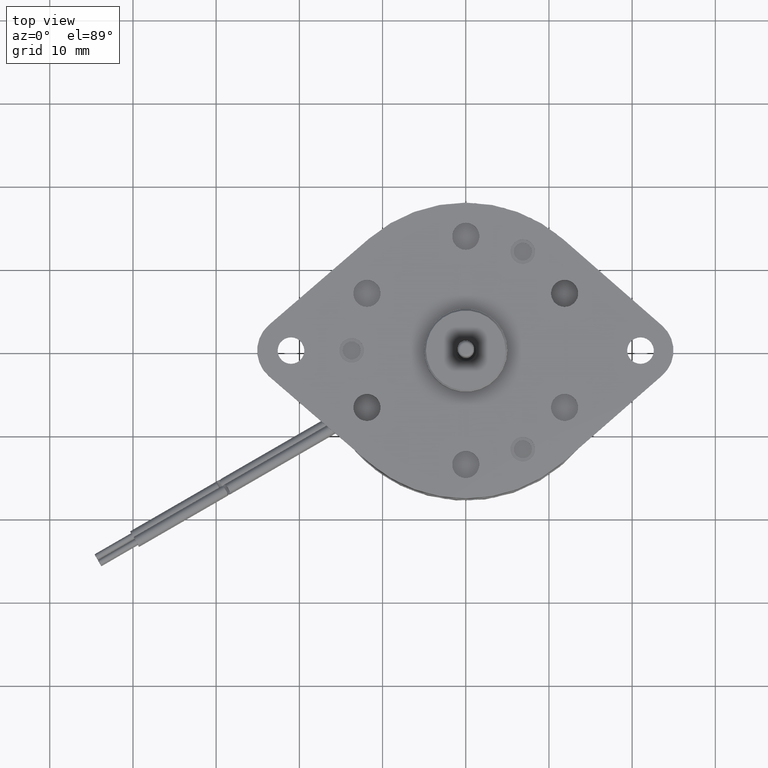
[diagram: clean part render]
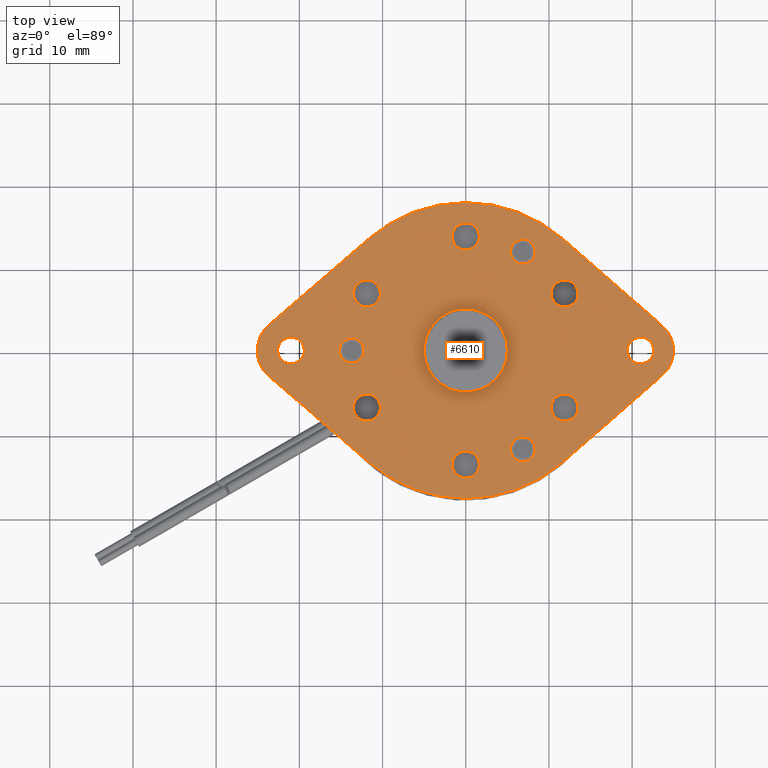
[diagram: same view with one face highlighted and labeled with its STEP entity id]
A machine part, top view. The second image highlights one B-rep face of the part: STEP entity #6610.
In plain terms, the highlighted planar face has unit normal (0, 0, 1).
Its self-contained STEP definition (entity closure, byte-faithful):
#2009=CARTESIAN_POINT('',(0.E0,0.E0,3.52E-1));
#2010=DIRECTION('',(0.E0,0.E0,-1.E0));
#2011=DIRECTION('',(-6.529625151144E-1,7.573902256139E-1,0.E0));
#2012=AXIS2_PLACEMENT_3D('',#2009,#2010,#2011);
#2014=CARTESIAN_POINT('',(0.E0,0.E0,3.52E-1));
#2015=DIRECTION('',(0.E0,0.E0,-1.E0));
#2016=DIRECTION('',(0.E0,1.E0,0.E0));
#2017=AXIS2_PLACEMENT_3D('',#2014,#2015,#2016);
#2019=DIRECTION('',(7.531932783061E-1,-6.577992744861E-1,0.E0));
#2020=VECTOR('',#2019,6.228908411603E-1);
#2021=CARTESIAN_POINT('',(4.604594921399E-1,5.272352948146E-1,3.52E-1));
#2022=LINE('',#2021,#2020);
#2023=CARTESIAN_POINT('',(8.27E-1,0.E0,3.52E-1));
#2024=DIRECTION('',(0.E0,0.E0,-1.E0));
#2025=DIRECTION('',(6.577992744926E-1,7.531932783005E-1,0.E0));
#2026=AXIS2_PLACEMENT_3D('',#2023,#2024,#2025);
#2028=DIRECTION('',(-7.531932783061E-1,-6.577992744861E-1,0.E0));
#2029=VECTOR('',#2028,6.228908411584E-1);
#2030=CARTESIAN_POINT('',(9.296166868197E-1,-1.174981514159E-1,3.52E-1));
#2031=LINE('',#2030,#2029);
#2032=CARTESIAN_POINT('',(0.E0,0.E0,3.52E-1));
#2033=DIRECTION('',(0.E0,0.E0,-1.E0));
#2034=DIRECTION('',(6.577992744874E-1,-7.531932783050E-1,0.E0));
#2035=AXIS2_PLACEMENT_3D('',#2032,#2033,#2034);
#2037=CARTESIAN_POINT('',(0.E0,0.E0,3.52E-1));
#2038=DIRECTION('',(0.E0,0.E0,-1.E0));
#2039=DIRECTION('',(0.E0,-1.E0,0.E0));
#2040=AXIS2_PLACEMENT_3D('',#2037,#2038,#2039);
#2042=DIRECTION('',(-7.573902256134E-1,6.529625151149E-1,0.E0));
#2043=VECTOR('',#2042,6.263617165840E-1);
#2044=CARTESIAN_POINT('',(-4.570737605799E-1,-5.301731579299E-1,3.52E-1));
#2045=LINE('',#2044,#2043);
#2046=CARTESIAN_POINT('',(-8.27E-1,0.E0,3.52E-1));
#2047=DIRECTION('',(0.E0,0.E0,-1.E0));
#2048=DIRECTION('',(-6.529625151228E-1,-7.573902256066E-1,0.E0));
#2049=AXIS2_PLACEMENT_3D('',#2046,#2047,#2048);
#2051=DIRECTION('',(7.573902256134E-1,6.529625151149E-1,0.E0));
#2052=VECTOR('',#2051,6.263617165833E-1);
#2053=CARTESIAN_POINT('',(-9.314740024188E-1,1.211824360977E-1,3.52E-1));
#2054=LINE('',#2053,#2052);
#2055=CARTESIAN_POINT('',(8.27E-1,0.E0,3.52E-1));
#2056=DIRECTION('',(0.E0,0.E0,1.E0));
#2057=DIRECTION('',(0.E0,1.E0,0.E0));
#2058=AXIS2_PLACEMENT_3D('',#2055,#2056,#2057);
#2060=CARTESIAN_POINT('',(8.27E-1,0.E0,3.52E-1));
#2061=DIRECTION('',(0.E0,0.E0,1.E0));
#2062=DIRECTION('',(0.E0,-1.E0,0.E0));
#2063=AXIS2_PLACEMENT_3D('',#2060,#2061,#2062);
#2065=CARTESIAN_POINT('',(-8.27E-1,0.E0,3.52E-1));
#2066=DIRECTION('',(0.E0,0.E0,1.E0));
#2067=DIRECTION('',(0.E0,1.E0,0.E0));
#2068=AXIS2_PLACEMENT_3D('',#2065,#2066,#2067);
#2070=CARTESIAN_POINT('',(-8.27E-1,0.E0,3.52E-1));
#2071=DIRECTION('',(0.E0,0.E0,1.E0));
#2072=DIRECTION('',(0.E0,-1.E0,0.E0));
#2073=AXIS2_PLACEMENT_3D('',#2070,#2071,#2072);
#2075=CARTESIAN_POINT('',(4.676537180436E-1,2.7E-1,3.52E-1));
#2076=DIRECTION('',(0.E0,0.E0,1.E0));
#2077=DIRECTION('',(0.E0,1.E0,0.E0));
#2078=AXIS2_PLACEMENT_3D('',#2075,#2076,#2077);
#2080=CARTESIAN_POINT('',(4.676537180436E-1,2.7E-1,3.52E-1));
#2081=DIRECTION('',(0.E0,0.E0,1.E0));
#2082=DIRECTION('',(0.E0,-1.E0,0.E0));
#2083=AXIS2_PLACEMENT_3D('',#2080,#2081,#2082);
#2085=CARTESIAN_POINT('',(4.676537180436E-1,-2.7E-1,3.52E-1));
#2086=DIRECTION('',(0.E0,0.E0,1.E0));
#2087=DIRECTION('',(0.E0,1.E0,0.E0));
#2088=AXIS2_PLACEMENT_3D('',#2085,#2086,#2087);
#2090=CARTESIAN_POINT('',(4.676537180436E-1,-2.7E-1,3.52E-1));
#2091=DIRECTION('',(0.E0,0.E0,1.E0));
#2092=DIRECTION('',(0.E0,-1.E0,0.E0));
#2093=AXIS2_PLACEMENT_3D('',#2090,#2091,#2092);
#2095=CARTESIAN_POINT('',(0.E0,-5.4E-1,3.52E-1));
#2096=DIRECTION('',(0.E0,0.E0,1.E0));
#2097=DIRECTION('',(0.E0,1.E0,0.E0));
#2098=AXIS2_PLACEMENT_3D('',#2095,#2096,#2097);
#2100=CARTESIAN_POINT('',(0.E0,-5.4E-1,3.52E-1));
#2101=DIRECTION('',(0.E0,0.E0,1.E0));
#2102=DIRECTION('',(0.E0,-1.E0,0.E0));
#2103=AXIS2_PLACEMENT_3D('',#2100,#2101,#2102);
#2105=CARTESIAN_POINT('',(0.E0,5.4E-1,3.52E-1));
#2106=DIRECTION('',(0.E0,0.E0,1.E0));
#2107=DIRECTION('',(0.E0,1.E0,0.E0));
#2108=AXIS2_PLACEMENT_3D('',#2105,#2106,#2107);
#2110=CARTESIAN_POINT('',(0.E0,5.4E-1,3.52E-1));
#2111=DIRECTION('',(0.E0,0.E0,1.E0));
#2112=DIRECTION('',(0.E0,-1.E0,0.E0));
#2113=AXIS2_PLACEMENT_3D('',#2110,#2111,#2112);
#2115=CARTESIAN_POINT('',(-4.676537180436E-1,2.7E-1,3.52E-1));
#2116=DIRECTION('',(0.E0,0.E0,1.E0));
#2117=DIRECTION('',(0.E0,1.E0,0.E0));
#2118=AXIS2_PLACEMENT_3D('',#2115,#2116,#2117);
#2120=CARTESIAN_POINT('',(-4.676537180436E-1,2.7E-1,3.52E-1));
#2121=DIRECTION('',(0.E0,0.E0,1.E0));
#2122=DIRECTION('',(0.E0,-1.E0,0.E0));
#2123=AXIS2_PLACEMENT_3D('',#2120,#2121,#2122);
#2125=CARTESIAN_POINT('',(-4.676537180436E-1,-2.7E-1,3.52E-1));
#2126=DIRECTION('',(0.E0,0.E0,1.E0));
#2127=DIRECTION('',(0.E0,1.E0,0.E0));
#2128=AXIS2_PLACEMENT_3D('',#2125,#2126,#2127);
#2130=CARTESIAN_POINT('',(-4.676537180436E-1,-2.7E-1,3.52E-1));
#2131=DIRECTION('',(0.E0,0.E0,1.E0));
#2132=DIRECTION('',(0.E0,-1.E0,0.E0));
#2133=AXIS2_PLACEMENT_3D('',#2130,#2131,#2132);
#2135=CARTESIAN_POINT('',(-5.4E-1,0.E0,3.52E-1));
#2136=DIRECTION('',(0.E0,0.E0,1.E0));
#2137=DIRECTION('',(1.E0,2.494880264240E-13,0.E0));
#2138=AXIS2_PLACEMENT_3D('',#2135,#2136,#2137);
#2140=CARTESIAN_POINT('',(-5.4E-1,0.E0,3.52E-1));
#2141=DIRECTION('',(0.E0,0.E0,1.E0));
#2142=DIRECTION('',(-1.E0,2.503343793484E-13,0.E0));
#2143=AXIS2_PLACEMENT_3D('',#2140,#2141,#2142);
#2145=CARTESIAN_POINT('',(2.7E-1,-4.676537180436E-1,3.52E-1));
#2146=DIRECTION('',(0.E0,0.E0,1.E0));
#2147=DIRECTION('',(-5.000000000017E-1,8.660254037835E-1,0.E0));
#2148=AXIS2_PLACEMENT_3D('',#2145,#2146,#2147);
#2150=CARTESIAN_POINT('',(2.7E-1,-4.676537180436E-1,3.52E-1));
#2151=DIRECTION('',(0.E0,0.E0,1.E0));
#2152=DIRECTION('',(4.999999999977E-1,-8.660254037858E-1,0.E0));
#2153=AXIS2_PLACEMENT_3D('',#2150,#2151,#2152);
#2155=CARTESIAN_POINT('',(2.7E-1,4.676537180436E-1,3.52E-1));
#2156=DIRECTION('',(0.E0,0.E0,1.E0));
#2157=DIRECTION('',(-5.000000000017E-1,-8.660254037835E-1,0.E0));
#2158=AXIS2_PLACEMENT_3D('',#2155,#2156,#2157);
#2160=CARTESIAN_POINT('',(2.7E-1,4.676537180436E-1,3.52E-1));
#2161=DIRECTION('',(0.E0,0.E0,1.E0));
#2162=DIRECTION('',(4.999999999977E-1,8.660254037858E-1,0.E0));
#2163=AXIS2_PLACEMENT_3D('',#2160,#2161,#2162);
#2165=CARTESIAN_POINT('',(0.E0,0.E0,3.52E-1));
#2166=DIRECTION('',(0.E0,0.E0,1.E0));
#2167=DIRECTION('',(-1.E0,2.558586108716E-13,0.E0));
#2168=AXIS2_PLACEMENT_3D('',#2165,#2166,#2167);
#2170=CARTESIAN_POINT('',(0.E0,0.E0,3.52E-1));
#2171=DIRECTION('',(0.E0,0.E0,1.E0));
#2172=DIRECTION('',(1.E0,-1.568267162643E-13,0.E0));
#2173=AXIS2_PLACEMENT_3D('',#2170,#2171,#2172);
#3428=CARTESIAN_POINT('',(-1.9685E-1,5.036576755008E-14,3.52E-1));
#3429=CARTESIAN_POINT('',(1.9685E-1,-3.089544642847E-14,3.52E-1));
#3430=VERTEX_POINT('',#3428);
#3431=VERTEX_POINT('',#3429);
#3432=CARTESIAN_POINT('',(-4.570737605801E-1,5.301731579297E-1,3.52E-1));
#3433=CARTESIAN_POINT('',(0.E0,7.E-1,3.52E-1));
#3434=VERTEX_POINT('',#3432);
#3435=VERTEX_POINT('',#3433);
#3436=CARTESIAN_POINT('',(4.604594921394E-1,5.272352948151E-1,3.52E-1));
#3437=VERTEX_POINT('',#3436);
#3438=CARTESIAN_POINT('',(9.296166868203E-1,1.174981514153E-1,3.52E-1));
#3439=VERTEX_POINT('',#3438);
#3440=CARTESIAN_POINT('',(9.296166868196E-1,-1.174981514159E-1,3.52E-1));
#3441=VERTEX_POINT('',#3440);
#3442=CARTESIAN_POINT('',(4.604594921407E-1,-5.272352948139E-1,3.52E-1));
#3443=VERTEX_POINT('',#3442);
#3444=CARTESIAN_POINT('',(0.E0,-7.E-1,3.52E-1));
#3445=VERTEX_POINT('',#3444);
#3446=CARTESIAN_POINT('',(-4.570737605796E-1,-5.301731579302E-1,3.52E-1));
#3447=VERTEX_POINT('',#3446);
#3448=CARTESIAN_POINT('',(-9.314740024191E-1,-1.211824360975E-1,3.52E-1));
#3449=VERTEX_POINT('',#3448);
#3450=CARTESIAN_POINT('',(-9.314740024194E-1,1.211824360973E-1,3.52E-1));
#3451=VERTEX_POINT('',#3450);
#3452=CARTESIAN_POINT('',(8.27E-1,6.3E-2,3.52E-1));
#3453=CARTESIAN_POINT('',(8.27E-1,-6.3E-2,3.52E-1));
#3454=VERTEX_POINT('',#3452);
#3455=VERTEX_POINT('',#3453);
#3456=CARTESIAN_POINT('',(-8.27E-1,6.3E-2,3.52E-1));
#3457=CARTESIAN_POINT('',(-8.27E-1,-6.3E-2,3.52E-1));
#3458=VERTEX_POINT('',#3456);
#3459=VERTEX_POINT('',#3457);
#3460=CARTESIAN_POINT('',(4.676537180436E-1,3.3425E-1,3.52E-1));
#3461=CARTESIAN_POINT('',(4.676537180436E-1,2.0575E-1,3.52E-1));
#3462=VERTEX_POINT('',#3460);
#3463=VERTEX_POINT('',#3461);
#3464=CARTESIAN_POINT('',(4.676537180436E-1,-2.0575E-1,3.52E-1));
#3465=CARTESIAN_POINT('',(4.676537180436E-1,-3.3425E-1,3.52E-1));
#3466=VERTEX_POINT('',#3464);
#3467=VERTEX_POINT('',#3465);
#3468=CARTESIAN_POINT('',(0.E0,-4.7575E-1,3.52E-1));
#3469=CARTESIAN_POINT('',(0.E0,-6.0425E-1,3.52E-1));
#3470=VERTEX_POINT('',#3468);
#3471=VERTEX_POINT('',#3469);
#3472=CARTESIAN_POINT('',(0.E0,6.0425E-1,3.52E-1));
#3473=CARTESIAN_POINT('',(0.E0,4.7575E-1,3.52E-1));
#3474=VERTEX_POINT('',#3472);
#3475=VERTEX_POINT('',#3473);
#3476=CARTESIAN_POINT('',(-4.676537180436E-1,3.3425E-1,3.52E-1));
#3477=CARTESIAN_POINT('',(-4.676537180436E-1,2.0575E-1,3.52E-1));
#3478=VERTEX_POINT('',#3476);
#3479=VERTEX_POINT('',#3477);
#3480=CARTESIAN_POINT('',(-4.676537180436E-1,-2.0575E-1,3.52E-1));
#3481=CARTESIAN_POINT('',(-4.676537180436E-1,-3.3425E-1,3.52E-1));
#3482=VERTEX_POINT('',#3480);
#3483=VERTEX_POINT('',#3481);
#3484=CARTESIAN_POINT('',(-4.8135E-1,1.463247274977E-14,3.52E-1));
#3485=CARTESIAN_POINT('',(-5.9865E-1,1.467627098113E-14,3.52E-1));
#3486=VERTEX_POINT('',#3484);
#3487=VERTEX_POINT('',#3485);
#3488=CARTESIAN_POINT('',(2.406749999999E-1,-4.168613281117E-1,3.52E-1));
#3489=CARTESIAN_POINT('',(2.993249999999E-1,-5.184461079757E-1,3.52E-1));
#3490=VERTEX_POINT('',#3488);
#3491=VERTEX_POINT('',#3489);
#3492=CARTESIAN_POINT('',(2.406749999999E-1,4.168613281117E-1,3.52E-1));
#3493=CARTESIAN_POINT('',(2.993249999999E-1,5.184461079757E-1,3.52E-1));
#3494=VERTEX_POINT('',#3492);
#3495=VERTEX_POINT('',#3493);
#6513=CARTESIAN_POINT('',(-2.006740499497E-3,-3.757833100249E-8,3.52E-1));
#6514=DIRECTION('',(0.E0,0.E0,1.E0));
#6515=DIRECTION('',(0.E0,-1.E0,0.E0));
#6516=AXIS2_PLACEMENT_3D('',#6513,#6514,#6515);
#6517=PLANE('',#6516);
#6518=ORIENTED_EDGE('',*,*,#6502,.T.);
#6519=ORIENTED_EDGE('',*,*,#6500,.T.);
#6521=ORIENTED_EDGE('',*,*,#6520,.T.);
#6523=ORIENTED_EDGE('',*,*,#6522,.T.);
#6525=ORIENTED_EDGE('',*,*,#6524,.T.);
#6527=ORIENTED_EDGE('',*,*,#6526,.T.);
#6529=ORIENTED_EDGE('',*,*,#6528,.T.);
#6531=ORIENTED_EDGE('',*,*,#6530,.T.);
#6533=ORIENTED_EDGE('',*,*,#6532,.T.);
#6535=ORIENTED_EDGE('',*,*,#6534,.T.);
#6536=EDGE_LOOP('',(#6518,#6519,#6521,#6523,#6525,#6527,#6529,#6531,#6533,
#6535));
#6537=FACE_OUTER_BOUND('',#6536,.F.);
#6539=ORIENTED_EDGE('',*,*,#6538,.T.);
#6541=ORIENTED_EDGE('',*,*,#6540,.T.);
#6542=EDGE_LOOP('',(#6539,#6541));
#6543=FACE_BOUND('',#6542,.F.);
#6545=ORIENTED_EDGE('',*,*,#6544,.T.);
#6547=ORIENTED_EDGE('',*,*,#6546,.T.);
#6548=EDGE_LOOP('',(#6545,#6547));
#6549=FACE_BOUND('',#6548,.F.);
#6551=ORIENTED_EDGE('',*,*,#6550,.T.);
#6553=ORIENTED_EDGE('',*,*,#6552,.T.);
#6554=EDGE_LOOP('',(#6551,#6553));
#6555=FACE_BOUND('',#6554,.F.);
#6557=ORIENTED_EDGE('',*,*,#6556,.T.);
#6559=ORIENTED_EDGE('',*,*,#6558,.T.);
#6560=EDGE_LOOP('',(#6557,#6559));
#6561=FACE_BOUND('',#6560,.F.);
#6563=ORIENTED_EDGE('',*,*,#6562,.T.);
#6565=ORIENTED_EDGE('',*,*,#6564,.T.);
#6566=EDGE_LOOP('',(#6563,#6565));
#6567=FACE_BOUND('',#6566,.F.);
#6569=ORIENTED_EDGE('',*,*,#6568,.T.);
#6571=ORIENTED_EDGE('',*,*,#6570,.T.);
#6572=EDGE_LOOP('',(#6569,#6571));
#6573=FACE_BOUND('',#6572,.F.);
#6575=ORIENTED_EDGE('',*,*,#6574,.T.);
#6577=ORIENTED_EDGE('',*,*,#6576,.T.);
#6578=EDGE_LOOP('',(#6575,#6577));
#6579=FACE_BOUND('',#6578,.F.);
#6581=ORIENTED_EDGE('',*,*,#6580,.T.);
#6583=ORIENTED_EDGE('',*,*,#6582,.T.);
#6584=EDGE_LOOP('',(#6581,#6583));
#6585=FACE_BOUND('',#6584,.F.);
#6587=ORIENTED_EDGE('',*,*,#6586,.T.);
#6589=ORIENTED_EDGE('',*,*,#6588,.T.);
#6590=EDGE_LOOP('',(#6587,#6589));
#6591=FACE_BOUND('',#6590,.F.);
#6593=ORIENTED_EDGE('',*,*,#6592,.T.);
#6595=ORIENTED_EDGE('',*,*,#6594,.T.);
#6596=EDGE_LOOP('',(#6593,#6595));
#6597=FACE_BOUND('',#6596,.F.);
#6599=ORIENTED_EDGE('',*,*,#6598,.T.);
#6601=ORIENTED_EDGE('',*,*,#6600,.T.);
#6602=EDGE_LOOP('',(#6599,#6601));
#6603=FACE_BOUND('',#6602,.F.);
#6605=ORIENTED_EDGE('',*,*,#6604,.T.);
#6607=ORIENTED_EDGE('',*,*,#6606,.T.);
#6608=EDGE_LOOP('',(#6605,#6607));
#6609=FACE_BOUND('',#6608,.F.);
#6610=ADVANCED_FACE('',(#6537,#6543,#6549,#6555,#6561,#6567,#6573,#6579,#6585,
#6591,#6597,#6603,#6609),#6517,.T.);
#2013=CIRCLE('',#2012,7.E-1);
#2018=CIRCLE('',#2017,7.E-1);
#2027=CIRCLE('',#2026,1.56E-1);
#2036=CIRCLE('',#2035,7.E-1);
#2041=CIRCLE('',#2040,7.E-1);
#2050=CIRCLE('',#2049,1.6E-1);
#2059=CIRCLE('',#2058,6.3E-2);
#2064=CIRCLE('',#2063,6.3E-2);
#2069=CIRCLE('',#2068,6.3E-2);
#2074=CIRCLE('',#2073,6.3E-2);
#2079=CIRCLE('',#2078,6.425E-2);
#2084=CIRCLE('',#2083,6.425E-2);
#2089=CIRCLE('',#2088,6.425E-2);
#2094=CIRCLE('',#2093,6.425E-2);
#2099=CIRCLE('',#2098,6.425E-2);
#2104=CIRCLE('',#2103,6.425E-2);
#2109=CIRCLE('',#2108,6.425E-2);
#2114=CIRCLE('',#2113,6.425E-2);
#2119=CIRCLE('',#2118,6.425E-2);
#2124=CIRCLE('',#2123,6.425E-2);
#2129=CIRCLE('',#2128,6.425E-2);
#2134=CIRCLE('',#2133,6.425E-2);
#2139=CIRCLE('',#2138,5.865E-2);
#2144=CIRCLE('',#2143,5.865E-2);
#2149=CIRCLE('',#2148,5.865000000004E-2);
#2154=CIRCLE('',#2153,5.865000000004E-2);
#2159=CIRCLE('',#2158,5.865000000004E-2);
#2164=CIRCLE('',#2163,5.865000000004E-2);
#2169=CIRCLE('',#2168,1.9685E-1);
#2174=CIRCLE('',#2173,1.9685E-1);
#6500=EDGE_CURVE('',#3435,#3437,#2018,.T.);
#6502=EDGE_CURVE('',#3434,#3435,#2013,.T.);
#6520=EDGE_CURVE('',#3437,#3439,#2022,.T.);
#6522=EDGE_CURVE('',#3439,#3441,#2027,.T.);
#6524=EDGE_CURVE('',#3441,#3443,#2031,.T.);
#6526=EDGE_CURVE('',#3443,#3445,#2036,.T.);
#6528=EDGE_CURVE('',#3445,#3447,#2041,.T.);
#6530=EDGE_CURVE('',#3447,#3449,#2045,.T.);
#6532=EDGE_CURVE('',#3449,#3451,#2050,.T.);
#6534=EDGE_CURVE('',#3451,#3434,#2054,.T.);
#6538=EDGE_CURVE('',#3454,#3455,#2059,.T.);
#6540=EDGE_CURVE('',#3455,#3454,#2064,.T.);
#6544=EDGE_CURVE('',#3458,#3459,#2069,.T.);
#6546=EDGE_CURVE('',#3459,#3458,#2074,.T.);
#6550=EDGE_CURVE('',#3462,#3463,#2079,.T.);
#6552=EDGE_CURVE('',#3463,#3462,#2084,.T.);
#6556=EDGE_CURVE('',#3466,#3467,#2089,.T.);
#6558=EDGE_CURVE('',#3467,#3466,#2094,.T.);
#6562=EDGE_CURVE('',#3470,#3471,#2099,.T.);
#6564=EDGE_CURVE('',#3471,#3470,#2104,.T.);
#6568=EDGE_CURVE('',#3474,#3475,#2109,.T.);
#6570=EDGE_CURVE('',#3475,#3474,#2114,.T.);
#6574=EDGE_CURVE('',#3478,#3479,#2119,.T.);
#6576=EDGE_CURVE('',#3479,#3478,#2124,.T.);
#6580=EDGE_CURVE('',#3482,#3483,#2129,.T.);
#6582=EDGE_CURVE('',#3483,#3482,#2134,.T.);
#6586=EDGE_CURVE('',#3486,#3487,#2139,.T.);
#6588=EDGE_CURVE('',#3487,#3486,#2144,.T.);
#6592=EDGE_CURVE('',#3490,#3491,#2149,.T.);
#6594=EDGE_CURVE('',#3491,#3490,#2154,.T.);
#6598=EDGE_CURVE('',#3494,#3495,#2159,.T.);
#6600=EDGE_CURVE('',#3495,#3494,#2164,.T.);
#6604=EDGE_CURVE('',#3430,#3431,#2169,.T.);
#6606=EDGE_CURVE('',#3431,#3430,#2174,.T.);